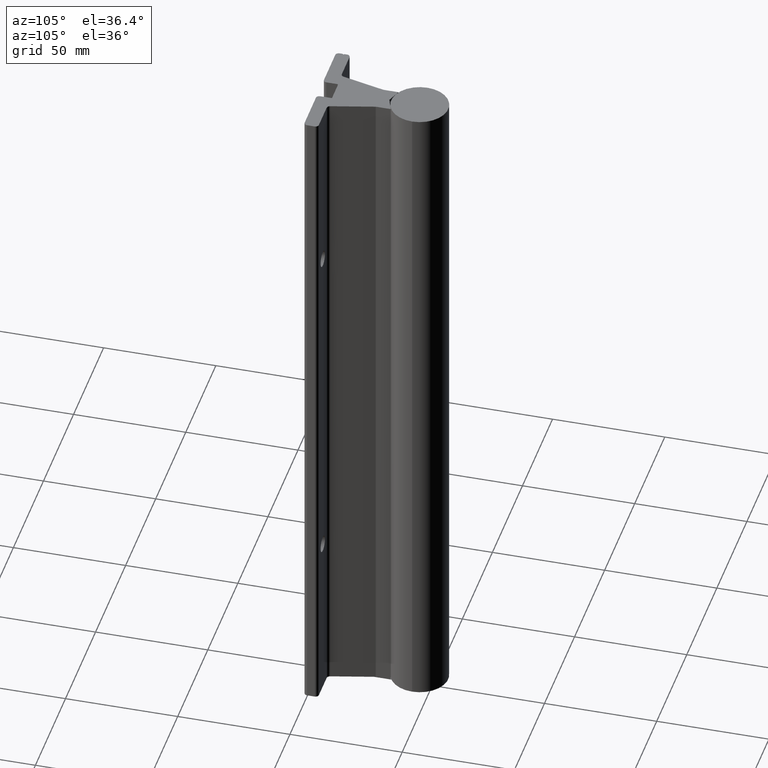
[diagram: clean part render]
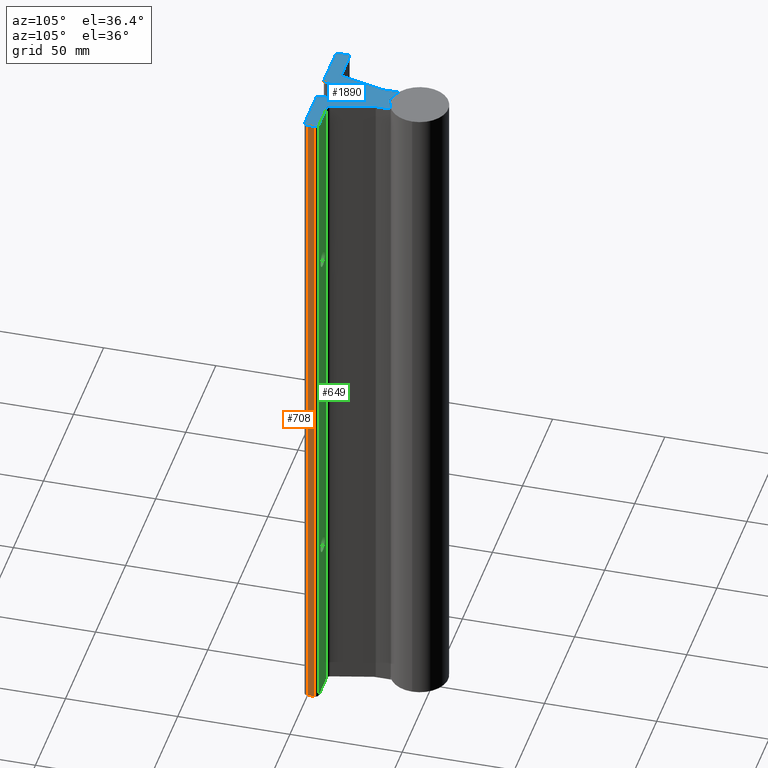
[diagram: same view with three faces highlighted in distinct colors, each labeled with its STEP entity id]
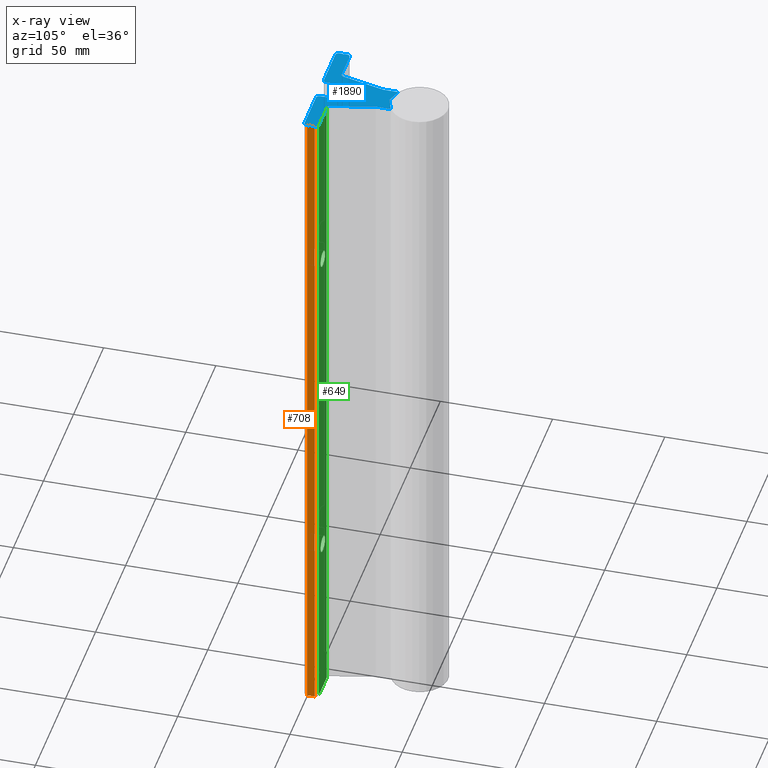
[diagram: x-ray of the same camera — body ghosted, the three highlighted faces saturated]
A machine part, auxiliary view with three faces highlighted in distinct colors.
The next image is the same camera in x-ray (body ghosted, the three faces saturated) — at least one of them is partly hidden behind the body in this view.
Their STEP definitions:

[orange] entity #708 — the highlighted planar face has unit normal (1, 0, 0).
#95 = VECTOR ( 'NONE', #2789, 39.37007874015748143 ) ;
#229 = VERTEX_POINT ( 'NONE', #3774 ) ;
#282 = DIRECTION ( 'NONE',  ( -4.202843067175812201E-15, 1.000000000000000000, 0.000000000000000000 ) ) ;
#370 = EDGE_CURVE ( 'NONE', #1080, #3290, #3075, .T. ) ;
#708 = ADVANCED_FACE ( 'NONE', ( #3352 ), #3965, .T. ) ;
#804 = VERTEX_POINT ( 'NONE', #3289 ) ;
#1080 = VERTEX_POINT ( 'NONE', #1471 ) ;
#1181 = ORIENTED_EDGE ( 'NONE', *, *, #3157, .T. ) ;
#1219 = DIRECTION ( 'NONE',  ( 0.000000000000000000, 0.000000000000000000, 1.000000000000000000 ) ) ;
#1333 = EDGE_LOOP ( 'NONE', ( #1482, #1181, #2409, #1788 ) ) ;
#1439 = DIRECTION ( 'NONE',  ( 4.202843067175812201E-15, -1.000000000000000000, 0.000000000000000000 ) ) ;
#1471 = CARTESIAN_POINT ( 'NONE',  ( 1.062500000003299805, 0.06000000000000058759, -12.00000000000000178 ) ) ;
#1482 = ORIENTED_EDGE ( 'NONE', *, *, #1869, .F. ) ;
#1510 = CARTESIAN_POINT ( 'NONE',  ( 1.062500000003299139, 0.1899999999999998912, -14.49573696227415098 ) ) ;
#1543 = CARTESIAN_POINT ( 'NONE',  ( 1.062500000003299805, 0.06000000000000058759, 0.000000000000000000 ) ) ;
#1702 = VECTOR ( 'NONE', #1219, 39.37007874015748143 ) ;
#1773 = CARTESIAN_POINT ( 'NONE',  ( 1.062500000003299805, 0.06000000000000058759, -14.49573696227415098 ) ) ;
#1788 = ORIENTED_EDGE ( 'NONE', *, *, #370, .F. ) ;
#1828 = DIRECTION ( 'NONE',  ( 1.000000000000000000, 4.202843067175812201E-15, -0.000000000000000000 ) ) ;
#1869 = EDGE_CURVE ( 'NONE', #229, #1080, #2967, .T. ) ;
#2082 = DIRECTION ( 'NONE',  ( 0.000000000000000000, 0.000000000000000000, 1.000000000000000000 ) ) ;
#2337 = AXIS2_PLACEMENT_3D ( 'NONE', #3070, #1828, #282 ) ;
#2409 = ORIENTED_EDGE ( 'NONE', *, *, #2513, .F. ) ;
#2491 = LINE ( 'NONE', #1510, #3303 ) ;
#2513 = EDGE_CURVE ( 'NONE', #3290, #804, #2809, .T. ) ;
#2789 = DIRECTION ( 'NONE',  ( -4.202843067175812201E-15, 1.000000000000000000, 0.000000000000000000 ) ) ;
#2809 = LINE ( 'NONE', #1543, #95 ) ;
#2967 = LINE ( 'NONE', #2992, #3443 ) ;
#2992 = CARTESIAN_POINT ( 'NONE',  ( 1.062500000003299805, 0.06000000000000058759, -12.00000000000000178 ) ) ;
#3070 = CARTESIAN_POINT ( 'NONE',  ( 1.062500000003299805, 0.06000000000000058759, -14.49573696227415098 ) ) ;
#3075 = LINE ( 'NONE', #1773, #1702 ) ;
#3157 = EDGE_CURVE ( 'NONE', #229, #804, #2491, .T. ) ;
#3289 = CARTESIAN_POINT ( 'NONE',  ( 1.062500000003299139, 0.1899999999999998912, 0.000000000000000000 ) ) ;
#3290 = VERTEX_POINT ( 'NONE', #3747 ) ;
#3303 = VECTOR ( 'NONE', #2082, 39.37007874015748143 ) ;
#3352 = FACE_OUTER_BOUND ( 'NONE', #1333, .T. ) ;
#3443 = VECTOR ( 'NONE', #1439, 39.37007874015748143 ) ;
#3747 = CARTESIAN_POINT ( 'NONE',  ( 1.062500000003299805, 0.06000000000000058759, 0.000000000000000000 ) ) ;
#3774 = CARTESIAN_POINT ( 'NONE',  ( 1.062500000003299139, 0.1899999999999998912, -12.00000000000000178 ) ) ;
#3965 = PLANE ( 'NONE',  #2337 ) ;

[blue] entity #1890 — the highlighted planar face has unit normal (0, 0, 1).
#2 = ORIENTED_EDGE ( 'NONE', *, *, #3460, .T. ) ;
#12 = VERTEX_POINT ( 'NONE', #4000 ) ;
#35 = CARTESIAN_POINT ( 'NONE',  ( 0.2444787913971579463, 0.003618442752846084878, 0.000000000000000000 ) ) ;
#53 = CARTESIAN_POINT ( 'NONE',  ( -0.4974315324142474792, 0.3124999999999997224, 0.000000000000000000 ) ) ;
#75 = DIRECTION ( 'NONE',  ( -1.000000000000000000, 5.408866656525876571E-16, 0.000000000000000000 ) ) ;
#80 = VECTOR ( 'NONE', #75, 39.37007874015748143 ) ;
#86 = VECTOR ( 'NONE', #3000, 39.37007874015748143 ) ;
#95 = VECTOR ( 'NONE', #2789, 39.37007874015748143 ) ;
#98 = CARTESIAN_POINT ( 'NONE',  ( 0.2649999999966984876, 0.06000000000000031697, 0.000000000000000000 ) ) ;
#118 = LINE ( 'NONE', #2923, #1941 ) ;
#136 = EDGE_CURVE ( 'NONE', #1016, #784, #3430, .T. ) ;
#137 = DIRECTION ( 'NONE',  ( 0.9396926207859099822, 0.3420201433256641055, 0.000000000000000000 ) ) ;
#140 = CARTESIAN_POINT ( 'NONE',  ( -1.023021208602842957, 0.003618442752846349423, 0.000000000000000000 ) ) ;
#141 = VECTOR ( 'NONE', #1001, 39.37007874015748854 ) ;
#197 = CARTESIAN_POINT ( 'NONE',  ( -0.2544203811607963495, -1.365923996832131609E-16, 0.000000000000000000 ) ) ;
#199 = ORIENTED_EDGE ( 'NONE', *, *, #1509, .T. ) ;
#211 = EDGE_CURVE ( 'NONE', #3921, #3184, #2055, .T. ) ;
#240 = VERTEX_POINT ( 'NONE', #926 ) ;
#264 = DIRECTION ( 'NONE',  ( 1.000000000000000000, 0.000000000000000000, 0.000000000000000000 ) ) ;
#270 = DIRECTION ( 'NONE',  ( -0.000000000000000000, -0.000000000000000000, -1.000000000000000000 ) ) ;
#307 = DIRECTION ( 'NONE',  ( 0.9396926207859244151, 0.3420201433256246926, 0.000000000000000000 ) ) ;
#389 = EDGE_CURVE ( 'NONE', #823, #548, #3071, .T. ) ;
#398 = ORIENTED_EDGE ( 'NONE', *, *, #3538, .T. ) ;
#406 = CIRCLE ( 'NONE', #3900, 0.01500000000000031863 ) ;
#408 = ORIENTED_EDGE ( 'NONE', *, *, #3737, .T. ) ;
#410 = CARTESIAN_POINT ( 'NONE',  ( -1.002500000003302638, 0.1899999999999999467, 0.000000000000000000 ) ) ;
#418 = ORIENTED_EDGE ( 'NONE', *, *, #1444, .T. ) ;
#420 = AXIS2_PLACEMENT_3D ( 'NONE', #2708, #3034, #264 ) ;
#423 = VERTEX_POINT ( 'NONE', #2537 ) ;
#443 = DIRECTION ( 'NONE',  ( 1.000000000000000000, 0.000000000000000000, 0.000000000000000000 ) ) ;
#466 = CARTESIAN_POINT ( 'NONE',  ( 0.2499999999966968922, 1.305666897899299350, 0.000000000000000000 ) ) ;
#468 = LINE ( 'NONE', #825, #3958 ) ;
#540 = EDGE_CURVE ( 'NONE', #1943, #2240, #118, .T. ) ;
#548 = VERTEX_POINT ( 'NONE', #3574 ) ;
#552 = CARTESIAN_POINT ( 'NONE',  ( -0.2180000000033027185, 1.305666897938102977, 0.000000000000000000 ) ) ;
#565 = DIRECTION ( 'NONE',  ( 1.000000000000000000, 0.000000000000000000, -0.000000000000000000 ) ) ;
#569 = ORIENTED_EDGE ( 'NONE', *, *, #1369, .T. ) ;
#572 = CARTESIAN_POINT ( 'NONE',  ( 0.2444787913971579463, 0.003618442752846076204, 0.000000000000000000 ) ) ;
#586 = LINE ( 'NONE', #3707, #2792 ) ;
#591 = EDGE_CURVE ( 'NONE', #3513, #1282, #1703, .T. ) ;
#594 = AXIS2_PLACEMENT_3D ( 'NONE', #2641, #819, #2319 ) ;
#632 = LINE ( 'NONE', #1862, #3001 ) ;
#654 = AXIS2_PLACEMENT_3D ( 'NONE', #552, #1163, #930 ) ;
#664 = LINE ( 'NONE', #3097, #2157 ) ;
#668 = EDGE_CURVE ( 'NONE', #2376, #1943, #1767, .T. ) ;
#682 = CARTESIAN_POINT ( 'NONE',  ( 0.2498416863023912027, 1.308846050806876882, 0.000000000000000000 ) ) ;
#702 = LINE ( 'NONE', #1324, #865 ) ;
#740 = CARTESIAN_POINT ( 'NONE',  ( -1.052500000003302905, 0.1232735026918957977, 0.000000000000000000 ) ) ;
#784 = VERTEX_POINT ( 'NONE', #3372 ) ;
#804 = VERTEX_POINT ( 'NONE', #3289 ) ;
#808 = CARTESIAN_POINT ( 'NONE',  ( 0.2049999999966982400, 0.2500000000000001110, 0.000000000000000000 ) ) ;
#819 = DIRECTION ( 'NONE',  ( -0.000000000000000000, -0.000000000000000000, -1.000000000000000000 ) ) ;
#823 = VERTEX_POINT ( 'NONE', #922 ) ;
#825 = CARTESIAN_POINT ( 'NONE',  ( 1.002500000003299307, 0.2499999999999999167, 0.000000000000000000 ) ) ;
#849 = AXIS2_PLACEMENT_3D ( 'NONE', #2158, #2685, #2072 ) ;
#863 = CARTESIAN_POINT ( 'NONE',  ( -2.500000000000000000, 0.000000000000000000, 0.000000000000000000 ) ) ;
#865 = VECTOR ( 'NONE', #1931, 39.37007874015748143 ) ;
#867 = VERTEX_POINT ( 'NONE', #2087 ) ;
#874 = EDGE_CURVE ( 'NONE', #2297, #3321, #1859, .T. ) ;
#888 = DIRECTION ( 'NONE',  ( -0.2419218955872280141, -0.9702957262790979920, 0.000000000000000000 ) ) ;
#889 = DIRECTION ( 'NONE',  ( 0.000000000000000000, 0.000000000000000000, 1.000000000000000000 ) ) ;
#922 = CARTESIAN_POINT ( 'NONE',  ( -0.2050000000033025405, 0.2500000000000001110, -0.000000000000000000 ) ) ;
#926 = CARTESIAN_POINT ( 'NONE',  ( -1.062500000003302469, 0.1175000000000001876, 0.000000000000000000 ) ) ;
#930 = DIRECTION ( 'NONE',  ( 1.000000000000000000, 0.000000000000000000, 0.000000000000000000 ) ) ;
#935 = EDGE_CURVE ( 'NONE', #3558, #1139, #1783, .T. ) ;
#947 = CARTESIAN_POINT ( 'NONE',  ( -1.052500000003302905, 0.1232735026918957977, 0.000000000000000000 ) ) ;
#971 = VECTOR ( 'NONE', #2094, 39.37007874015748143 ) ;
#995 = ORIENTED_EDGE ( 'NONE', *, *, #2273, .T. ) ;
#996 = LINE ( 'NONE', #1868, #80 ) ;
#998 = ORIENTED_EDGE ( 'NONE', *, *, #136, .T. ) ;
#999 = EDGE_CURVE ( 'NONE', #1183, #3513, #1125, .T. ) ;
#1001 = DIRECTION ( 'NONE',  ( -0.8660254037844486996, -0.4999999999999824030, 0.000000000000000000 ) ) ;
#1004 = CARTESIAN_POINT ( 'NONE',  ( -0.2500000000033027470, 1.305666897938102977, 0.000000000000000000 ) ) ;
#1016 = VERTEX_POINT ( 'NONE', #1760 ) ;
#1021 = VERTEX_POINT ( 'NONE', #3656 ) ;
#1043 = ORIENTED_EDGE ( 'NONE', *, *, #3967, .T. ) ;
#1078 = CIRCLE ( 'NONE', #2509, 0.05999999999999976880 ) ;
#1099 = VERTEX_POINT ( 'NONE', #1450 ) ;
#1107 = CARTESIAN_POINT ( 'NONE',  ( -2.500000000000000000, 0.000000000000000000, 0.000000000000000000 ) ) ;
#1125 = LINE ( 'NONE', #1107, #1463 ) ;
#1139 = VERTEX_POINT ( 'NONE', #1734 ) ;
#1163 = DIRECTION ( 'NONE',  ( 0.000000000000000000, 0.000000000000000000, 1.000000000000000000 ) ) ;
#1183 = VERTEX_POINT ( 'NONE', #2125 ) ;
#1236 = EDGE_CURVE ( 'NONE', #548, #1763, #1269, .T. ) ;
#1262 = ORIENTED_EDGE ( 'NONE', *, *, #3567, .T. ) ;
#1269 = LINE ( 'NONE', #2777, #1331 ) ;
#1282 = VERTEX_POINT ( 'NONE', #2291 ) ;
#1293 = ORIENTED_EDGE ( 'NONE', *, *, #3114, .T. ) ;
#1306 = CARTESIAN_POINT ( 'NONE',  ( -0.2650000000033024827, 0.06000000000000038636, 0.000000000000000000 ) ) ;
#1314 = DIRECTION ( 'NONE',  ( 0.000000000000000000, 0.000000000000000000, 1.000000000000000000 ) ) ;
#1324 = CARTESIAN_POINT ( 'NONE',  ( 0.2499999999966968089, 1.054219864300000475, 0.000000000000000000 ) ) ;
#1331 = VECTOR ( 'NONE', #3752, 39.37007874015748143 ) ;
#1335 = VECTOR ( 'NONE', #2654, 39.37007874015748854 ) ;
#1351 = AXIS2_PLACEMENT_3D ( 'NONE', #3083, #3671, #3061 ) ;
#1353 = CIRCLE ( 'NONE', #3112, 0.06250000000000069389 ) ;
#1365 = DIRECTION ( 'NONE',  ( 0.000000000000000000, -1.000000000000000000, 0.000000000000000000 ) ) ;
#1369 = EDGE_CURVE ( 'NONE', #1282, #423, #1078, .T. ) ;
#1381 = CARTESIAN_POINT ( 'NONE',  ( 0.000000000000000000, 0.000000000000000000, 0.000000000000000000 ) ) ;
#1398 = VERTEX_POINT ( 'NONE', #2263 ) ;
#1403 = LINE ( 'NONE', #3955, #86 ) ;
#1436 = ORIENTED_EDGE ( 'NONE', *, *, #668, .T. ) ;
#1444 = EDGE_CURVE ( 'NONE', #3679, #1922, #1447, .T. ) ;
#1447 = LINE ( 'NONE', #808, #2123 ) ;
#1450 = CARTESIAN_POINT ( 'NONE',  ( 0.2499999999966968089, 1.054219864300000475, 0.000000000000000000 ) ) ;
#1451 = CARTESIAN_POINT ( 'NONE',  ( 0.4367880495966964816, 0.2973798815999993961, 0.000000000000000000 ) ) ;
#1463 = VECTOR ( 'NONE', #2022, 39.37007874015748143 ) ;
#1485 = CIRCLE ( 'NONE', #1351, 0.05999999999999949818 ) ;
#1509 = EDGE_CURVE ( 'NONE', #3321, #3921, #1403, .T. ) ;
#1516 = EDGE_LOOP ( 'NONE', ( #2762, #2969, #2394, #569, #2748, #2553, #3059, #2423, #418, #3550, #2258, #1262, #1043, #2899, #1918, #1293, #1813, #398, #3229, #408, #3807, #3106, #199, #2614, #2819, #995, #2, #2056, #998, #1986, #2345, #1436, #3850, #3452, #2214, #1942, #1541 ) ) ;
#1527 = LINE ( 'NONE', #572, #3496 ) ;
#1541 = ORIENTED_EDGE ( 'NONE', *, *, #3136, .T. ) ;
#1543 = CARTESIAN_POINT ( 'NONE',  ( 1.062500000003299805, 0.06000000000000058759, 0.000000000000000000 ) ) ;
#1572 = VECTOR ( 'NONE', #3599, 39.37007874015748854 ) ;
#1612 = CIRCLE ( 'NONE', #849, 0.06249999999999933387 ) ;
#1621 = EDGE_CURVE ( 'NONE', #1763, #3679, #406, .T. ) ;
#1651 = DIRECTION ( 'NONE',  ( 0.000000000000000000, 0.000000000000000000, 1.000000000000000000 ) ) ;
#1703 = LINE ( 'NONE', #197, #2851 ) ;
#1725 = CARTESIAN_POINT ( 'NONE',  ( -0.2518565171033020356, 1.039099745799999752, 0.000000000000000000 ) ) ;
#1734 = CARTESIAN_POINT ( 'NONE',  ( 0.2518565171966969940, 1.039099745799999752, 0.000000000000000000 ) ) ;
#1760 = CARTESIAN_POINT ( 'NONE',  ( -0.4367880495033028554, 0.2973798815999998402, 0.000000000000000000 ) ) ;
#1763 = VERTEX_POINT ( 'NONE', #2866 ) ;
#1767 = LINE ( 'NONE', #3902, #2403 ) ;
#1783 = LINE ( 'NONE', #1451, #1335 ) ;
#1802 = EDGE_CURVE ( 'NONE', #2240, #3333, #2012, .T. ) ;
#1813 = ORIENTED_EDGE ( 'NONE', *, *, #2919, .T. ) ;
#1835 = VERTEX_POINT ( 'NONE', #1725 ) ;
#1840 = DIRECTION ( 'NONE',  ( 0.9396926207858971036, -0.3420201433256993551, 0.000000000000000000 ) ) ;
#1859 = CIRCLE ( 'NONE', #2446, 0.03200000000000019496 ) ;
#1862 = CARTESIAN_POINT ( 'NONE',  ( -0.2050000000033029290, 0.06000000000000010880, 0.000000000000000000 ) ) ;
#1868 = CARTESIAN_POINT ( 'NONE',  ( -0.4974315324033023455, 0.2499999999999998057, 0.000000000000000000 ) ) ;
#1890 = ADVANCED_FACE ( 'NONE', ( #2404 ), #3644, .T. ) ;
#1897 = DIRECTION ( 'NONE',  ( -0.000000000000000000, -0.000000000000000000, -1.000000000000000000 ) ) ;
#1918 = ORIENTED_EDGE ( 'NONE', *, *, #2513, .T. ) ;
#1922 = VERTEX_POINT ( 'NONE', #2414 ) ;
#1931 = DIRECTION ( 'NONE',  ( 1.358063343679013871E-16, 1.000000000000000000, 0.000000000000000000 ) ) ;
#1938 = VECTOR ( 'NONE', #2620, 39.37007874015748854 ) ;
#1941 = VECTOR ( 'NONE', #2638, 39.37007874015748854 ) ;
#1942 = ORIENTED_EDGE ( 'NONE', *, *, #3287, .T. ) ;
#1943 = VERTEX_POINT ( 'NONE', #2696 ) ;
#1960 = CARTESIAN_POINT ( 'NONE',  ( 0.2544203811541909666, -3.414809992080329023E-17, 0.000000000000000000 ) ) ;
#1962 = EDGE_CURVE ( 'NONE', #3319, #3290, #3833, .T. ) ;
#1986 = ORIENTED_EDGE ( 'NONE', *, *, #3649, .T. ) ;
#1991 = CARTESIAN_POINT ( 'NONE',  ( 4.097771990496394828E-16, 1.217911113771135811, 0.000000000000000000 ) ) ;
#2012 = LINE ( 'NONE', #3273, #2989 ) ;
#2022 = DIRECTION ( 'NONE',  ( 1.000000000000000000, 0.000000000000000000, 0.000000000000000000 ) ) ;
#2032 = LINE ( 'NONE', #140, #1938 ) ;
#2055 = LINE ( 'NONE', #1991, #1572 ) ;
#2056 = ORIENTED_EDGE ( 'NONE', *, *, #2494, .T. ) ;
#2061 = CARTESIAN_POINT ( 'NONE',  ( 1.002500000003299307, 0.06000000000000058759, 0.000000000000000000 ) ) ;
#2072 = DIRECTION ( 'NONE',  ( 1.000000000000000000, 0.000000000000000000, 0.000000000000000000 ) ) ;
#2087 = CARTESIAN_POINT ( 'NONE',  ( 1.013079618845805774, 0.000000000000000000, 0.000000000000000000 ) ) ;
#2094 = DIRECTION ( 'NONE',  ( 1.000000000000000000, 0.000000000000000000, 0.000000000000000000 ) ) ;
#2118 = VERTEX_POINT ( 'NONE', #35 ) ;
#2123 = VECTOR ( 'NONE', #2649, 39.37007874015748143 ) ;
#2125 = CARTESIAN_POINT ( 'NONE',  ( -1.013079618845818874, 1.570812596356951301E-15, 0.000000000000000000 ) ) ;
#2157 = VECTOR ( 'NONE', #888, 39.37007874015748854 ) ;
#2158 = CARTESIAN_POINT ( 'NONE',  ( 0.4974315325076398842, 0.3124999999999996669, 0.000000000000000000 ) ) ;
#2181 = EDGE_CURVE ( 'NONE', #423, #823, #632, .T. ) ;
#2214 = ORIENTED_EDGE ( 'NONE', *, *, #3221, .T. ) ;
#2240 = VERTEX_POINT ( 'NONE', #3526 ) ;
#2256 = DIRECTION ( 'NONE',  ( 4.751039988981327336E-15, -1.000000000000000000, 0.000000000000000000 ) ) ;
#2258 = ORIENTED_EDGE ( 'NONE', *, *, #3101, .T. ) ;
#2263 = CARTESIAN_POINT ( 'NONE',  ( -0.2500000000033027470, 1.305666897938102977, 0.000000000000000000 ) ) ;
#2267 = CIRCLE ( 'NONE', #594, 0.06250000000000073552 ) ;
#2273 = EDGE_CURVE ( 'NONE', #1398, #3509, #3789, .T. ) ;
#2291 = CARTESIAN_POINT ( 'NONE',  ( -0.2444787914037632459, 0.003618442752845649462, 0.000000000000000000 ) ) ;
#2297 = VERTEX_POINT ( 'NONE', #466 ) ;
#2308 = DIRECTION ( 'NONE',  ( -1.000000000000000000, 6.761083321907651051E-16, 0.000000000000000000 ) ) ;
#2316 = EDGE_CURVE ( 'NONE', #1099, #2297, #702, .T. ) ;
#2319 = DIRECTION ( 'NONE',  ( 1.000000000000000000, 0.000000000000000000, 0.000000000000000000 ) ) ;
#2345 = ORIENTED_EDGE ( 'NONE', *, *, #3755, .T. ) ;
#2369 = CARTESIAN_POINT ( 'NONE',  ( -1.062500000003302913, 0.1899999999999999467, 0.000000000000000000 ) ) ;
#2376 = VERTEX_POINT ( 'NONE', #2369 ) ;
#2394 = ORIENTED_EDGE ( 'NONE', *, *, #591, .T. ) ;
#2402 = CARTESIAN_POINT ( 'NONE',  ( 0.4367880495966964260, 0.2973798815999993961, 0.000000000000000000 ) ) ;
#2403 = VECTOR ( 'NONE', #3944, 39.37007874015748143 ) ;
#2404 = FACE_OUTER_BOUND ( 'NONE', #1516, .T. ) ;
#2412 = CARTESIAN_POINT ( 'NONE',  ( 1.002500000003299307, 0.1899999999999999467, 0.000000000000000000 ) ) ;
#2414 = CARTESIAN_POINT ( 'NONE',  ( 0.2049999999966986286, 0.06000000000000027534, 0.000000000000000000 ) ) ;
#2416 = DIRECTION ( 'NONE',  ( 1.000000000000000000, 0.000000000000000000, 0.000000000000000000 ) ) ;
#2423 = ORIENTED_EDGE ( 'NONE', *, *, #1621, .T. ) ;
#2446 = AXIS2_PLACEMENT_3D ( 'NONE', #2959, #3939, #2416 ) ;
#2494 = EDGE_CURVE ( 'NONE', #1835, #1016, #664, .T. ) ;
#2509 = AXIS2_PLACEMENT_3D ( 'NONE', #1306, #3177, #2567 ) ;
#2511 = DIRECTION ( 'NONE',  ( -0.000000000000000000, -0.000000000000000000, -1.000000000000000000 ) ) ;
#2513 = EDGE_CURVE ( 'NONE', #3290, #804, #2809, .T. ) ;
#2537 = CARTESIAN_POINT ( 'NONE',  ( -0.2050000000033027348, 0.06000000000000010880, 0.000000000000000000 ) ) ;
#2542 = LINE ( 'NONE', #947, #141 ) ;
#2553 = ORIENTED_EDGE ( 'NONE', *, *, #389, .T. ) ;
#2555 = DIRECTION ( 'NONE',  ( 1.000000000000000000, 0.000000000000000000, 0.000000000000000000 ) ) ;
#2567 = DIRECTION ( 'NONE',  ( 1.000000000000000000, 0.000000000000000000, 0.000000000000000000 ) ) ;
#2614 = ORIENTED_EDGE ( 'NONE', *, *, #211, .T. ) ;
#2620 = DIRECTION ( 'NONE',  ( 0.9396926207858926627, -0.3420201433257117896, 0.000000000000000000 ) ) ;
#2621 = DIRECTION ( 'NONE',  ( 0.000000000000000000, 0.000000000000000000, 1.000000000000000000 ) ) ;
#2638 = DIRECTION ( 'NONE',  ( 0.8660254037844538066, -0.4999999999999735767, 0.000000000000000000 ) ) ;
#2641 = CARTESIAN_POINT ( 'NONE',  ( -0.3125000000033035241, 1.054219864243891802, 0.000000000000000000 ) ) ;
#2649 = DIRECTION ( 'NONE',  ( 1.976995258572823265E-15, -1.000000000000000000, 0.000000000000000000 ) ) ;
#2653 = CIRCLE ( 'NONE', #654, 0.03200000000000002842 ) ;
#2654 = DIRECTION ( 'NONE',  ( -0.2419218955872262378, 0.9702957262790985471, 0.000000000000000000 ) ) ;
#2685 = DIRECTION ( 'NONE',  ( -0.000000000000000000, -0.000000000000000000, -1.000000000000000000 ) ) ;
#2686 = DIRECTION ( 'NONE',  ( 0.000000000000000000, -1.000000000000000000, 0.000000000000000000 ) ) ;
#2696 = CARTESIAN_POINT ( 'NONE',  ( -1.062500000003302247, 0.1474999999999999922, 0.000000000000000000 ) ) ;
#2708 = CARTESIAN_POINT ( 'NONE',  ( -0.1900000000033017222, 0.2500000000000000555, 0.000000000000000000 ) ) ;
#2733 = CARTESIAN_POINT ( 'NONE',  ( 4.097771990496394828E-16, 1.217911113771135811, 0.000000000000000000 ) ) ;
#2748 = ORIENTED_EDGE ( 'NONE', *, *, #2181, .T. ) ;
#2762 = ORIENTED_EDGE ( 'NONE', *, *, #3364, .T. ) ;
#2777 = CARTESIAN_POINT ( 'NONE',  ( -0.1900000000033017222, 0.2650000000000007350, 0.000000000000000000 ) ) ;
#2783 = CARTESIAN_POINT ( 'NONE',  ( 0.2049999999966982123, 0.2500000000000001110, 0.000000000000000000 ) ) ;
#2789 = DIRECTION ( 'NONE',  ( -4.202843067175812201E-15, 1.000000000000000000, 0.000000000000000000 ) ) ;
#2792 = VECTOR ( 'NONE', #307, 39.37007874015748854 ) ;
#2797 = AXIS2_PLACEMENT_3D ( 'NONE', #1381, #2621, #565 ) ;
#2809 = LINE ( 'NONE', #1543, #95 ) ;
#2819 = ORIENTED_EDGE ( 'NONE', *, *, #3073, .T. ) ;
#2830 = DIRECTION ( 'NONE',  ( 1.000000000000000000, 0.000000000000000000, 0.000000000000000000 ) ) ;
#2840 = VERTEX_POINT ( 'NONE', #1960 ) ;
#2844 = AXIS2_PLACEMENT_3D ( 'NONE', #2412, #889, #3651 ) ;
#2848 = AXIS2_PLACEMENT_3D ( 'NONE', #410, #1651, #3809 ) ;
#2851 = VECTOR ( 'NONE', #137, 39.37007874015748854 ) ;
#2866 = CARTESIAN_POINT ( 'NONE',  ( 0.1899999999966978936, 0.2650000000000004019, 0.000000000000000000 ) ) ;
#2899 = ORIENTED_EDGE ( 'NONE', *, *, #1962, .T. ) ;
#2919 = EDGE_CURVE ( 'NONE', #3531, #12, #468, .T. ) ;
#2923 = CARTESIAN_POINT ( 'NONE',  ( -1.062500000003302247, 0.1474999999999999922, 0.000000000000000000 ) ) ;
#2959 = CARTESIAN_POINT ( 'NONE',  ( 0.2179999999966966973, 1.305666897899298906, 0.000000000000000000 ) ) ;
#2969 = ORIENTED_EDGE ( 'NONE', *, *, #999, .T. ) ;
#2989 = VECTOR ( 'NONE', #2686, 39.37007874015748143 ) ;
#3000 = DIRECTION ( 'NONE',  ( -0.9396926208550562265, -0.3420201431356865718, 0.000000000000000000 ) ) ;
#3001 = VECTOR ( 'NONE', #3427, 39.37007874015748143 ) ;
#3034 = DIRECTION ( 'NONE',  ( -0.000000000000000000, -0.000000000000000000, -1.000000000000000000 ) ) ;
#3059 = ORIENTED_EDGE ( 'NONE', *, *, #1236, .T. ) ;
#3061 = DIRECTION ( 'NONE',  ( 1.000000000000000000, 0.000000000000000000, 0.000000000000000000 ) ) ;
#3066 = VECTOR ( 'NONE', #1365, 39.37007874015748143 ) ;
#3071 = CIRCLE ( 'NONE', #420, 0.01500000000000072803 ) ;
#3073 = EDGE_CURVE ( 'NONE', #3184, #1398, #2653, .T. ) ;
#3076 = AXIS2_PLACEMENT_3D ( 'NONE', #53, #2511, #443 ) ;
#3079 = VERTEX_POINT ( 'NONE', #3404 ) ;
#3083 = CARTESIAN_POINT ( 'NONE',  ( -1.002500000003302638, 0.06000000000000031697, 0.000000000000000000 ) ) ;
#3090 = VERTEX_POINT ( 'NONE', #3344 ) ;
#3093 = CARTESIAN_POINT ( 'NONE',  ( -0.2500000000033027470, 1.054219864300000475, 0.000000000000000000 ) ) ;
#3097 = CARTESIAN_POINT ( 'NONE',  ( -0.2518565171033020911, 1.039099745799999752, 0.000000000000000000 ) ) ;
#3099 = DIRECTION ( 'NONE',  ( 1.000000000000000000, 0.000000000000000000, 0.000000000000000000 ) ) ;
#3101 = EDGE_CURVE ( 'NONE', #2118, #2840, #1527, .T. ) ;
#3106 = ORIENTED_EDGE ( 'NONE', *, *, #874, .T. ) ;
#3110 = CIRCLE ( 'NONE', #2844, 0.05999999999999990757 ) ;
#3112 = AXIS2_PLACEMENT_3D ( 'NONE', #3772, #1897, #2830 ) ;
#3114 = EDGE_CURVE ( 'NONE', #804, #3531, #3110, .T. ) ;
#3117 = CARTESIAN_POINT ( 'NONE',  ( 0.1899999999966978936, 0.2500000000000000555, 0.000000000000000000 ) ) ;
#3133 = LINE ( 'NONE', #3765, #3560 ) ;
#3136 = EDGE_CURVE ( 'NONE', #3079, #1021, #1485, .T. ) ;
#3177 = DIRECTION ( 'NONE',  ( 0.000000000000000000, 0.000000000000000000, 1.000000000000000000 ) ) ;
#3184 = VERTEX_POINT ( 'NONE', #3440 ) ;
#3221 = EDGE_CURVE ( 'NONE', #3333, #240, #2542, .T. ) ;
#3229 = ORIENTED_EDGE ( 'NONE', *, *, #935, .T. ) ;
#3273 = CARTESIAN_POINT ( 'NONE',  ( -1.052500000003302905, 0.1417264973081045210, 0.000000000000000000 ) ) ;
#3287 = EDGE_CURVE ( 'NONE', #240, #3079, #3133, .T. ) ;
#3289 = CARTESIAN_POINT ( 'NONE',  ( 1.062500000003299139, 0.1899999999999998912, 0.000000000000000000 ) ) ;
#3290 = VERTEX_POINT ( 'NONE', #3747 ) ;
#3306 = AXIS2_PLACEMENT_3D ( 'NONE', #98, #1314, #2555 ) ;
#3319 = VERTEX_POINT ( 'NONE', #3463 ) ;
#3321 = VERTEX_POINT ( 'NONE', #682 ) ;
#3327 = DIRECTION ( 'NONE',  ( 0.000000000000000000, 0.000000000000000000, 1.000000000000000000 ) ) ;
#3333 = VERTEX_POINT ( 'NONE', #740 ) ;
#3337 = CARTESIAN_POINT ( 'NONE',  ( -0.2544203811607962940, 0.000000000000000000, 0.000000000000000000 ) ) ;
#3344 = CARTESIAN_POINT ( 'NONE',  ( -1.002500000003302860, 0.2500000000000000555, 0.000000000000000000 ) ) ;
#3364 = EDGE_CURVE ( 'NONE', #1021, #1183, #2032, .T. ) ;
#3372 = CARTESIAN_POINT ( 'NONE',  ( -0.4974315324033023455, 0.2499999999999995837, 0.000000000000000000 ) ) ;
#3378 = CARTESIAN_POINT ( 'NONE',  ( 1.002500000003299307, 0.2499999999999999167, 0.000000000000000000 ) ) ;
#3404 = CARTESIAN_POINT ( 'NONE',  ( -1.062500000003302025, 0.06000000000000018513, 0.000000000000000000 ) ) ;
#3427 = DIRECTION ( 'NONE',  ( 2.156722100261260166E-15, 1.000000000000000000, 0.000000000000000000 ) ) ;
#3430 = CIRCLE ( 'NONE', #3076, 0.06250000000000015266 ) ;
#3440 = CARTESIAN_POINT ( 'NONE',  ( -0.2498416863082725259, 1.308846050852938259, 0.000000000000000000 ) ) ;
#3452 = ORIENTED_EDGE ( 'NONE', *, *, #1802, .T. ) ;
#3460 = EDGE_CURVE ( 'NONE', #3509, #1835, #2267, .T. ) ;
#3463 = CARTESIAN_POINT ( 'NONE',  ( 1.023021208602838961, 0.003618442752845333309, 0.000000000000000000 ) ) ;
#3496 = VECTOR ( 'NONE', #1840, 39.37007874015748854 ) ;
#3509 = VERTEX_POINT ( 'NONE', #3093 ) ;
#3513 = VERTEX_POINT ( 'NONE', #3337 ) ;
#3526 = CARTESIAN_POINT ( 'NONE',  ( -1.052500000003302905, 0.1417264973081044654, 0.000000000000000000 ) ) ;
#3531 = VERTEX_POINT ( 'NONE', #3378 ) ;
#3538 = EDGE_CURVE ( 'NONE', #12, #3558, #1612, .T. ) ;
#3550 = ORIENTED_EDGE ( 'NONE', *, *, #3696, .T. ) ;
#3558 = VERTEX_POINT ( 'NONE', #2402 ) ;
#3560 = VECTOR ( 'NONE', #2256, 39.37007874015748143 ) ;
#3567 = EDGE_CURVE ( 'NONE', #2840, #867, #3643, .T. ) ;
#3574 = CARTESIAN_POINT ( 'NONE',  ( -0.1900000000033017222, 0.2650000000000007905, 0.000000000000000000 ) ) ;
#3599 = DIRECTION ( 'NONE',  ( -0.9396926208019645843, 0.3420201432815545561, 0.000000000000000000 ) ) ;
#3634 = CIRCLE ( 'NONE', #3306, 0.05999999999999987288 ) ;
#3643 = LINE ( 'NONE', #863, #971 ) ;
#3644 = PLANE ( 'NONE',  #2797 ) ;
#3649 = EDGE_CURVE ( 'NONE', #784, #3090, #996, .T. ) ;
#3651 = DIRECTION ( 'NONE',  ( 1.000000000000000000, 0.000000000000000000, 0.000000000000000000 ) ) ;
#3656 = CARTESIAN_POINT ( 'NONE',  ( -1.023021208602842957, 0.003618442752846434858, 0.000000000000000000 ) ) ;
#3671 = DIRECTION ( 'NONE',  ( 0.000000000000000000, 0.000000000000000000, 1.000000000000000000 ) ) ;
#3679 = VERTEX_POINT ( 'NONE', #2783 ) ;
#3696 = EDGE_CURVE ( 'NONE', #1922, #2118, #3634, .T. ) ;
#3707 = CARTESIAN_POINT ( 'NONE',  ( 1.013079618845805774, 0.000000000000000000, 0.000000000000000000 ) ) ;
#3737 = EDGE_CURVE ( 'NONE', #1139, #1099, #1353, .T. ) ;
#3747 = CARTESIAN_POINT ( 'NONE',  ( 1.062500000003299805, 0.06000000000000058759, 0.000000000000000000 ) ) ;
#3752 = DIRECTION ( 'NONE',  ( 1.000000000000000000, -8.986342084421927875E-16, 0.000000000000000000 ) ) ;
#3755 = EDGE_CURVE ( 'NONE', #3090, #2376, #3762, .T. ) ;
#3762 = CIRCLE ( 'NONE', #2848, 0.06000000000000017819 ) ;
#3765 = CARTESIAN_POINT ( 'NONE',  ( -1.062500000003302247, 0.1175000000000001876, 0.000000000000000000 ) ) ;
#3771 = AXIS2_PLACEMENT_3D ( 'NONE', #2061, #3327, #3980 ) ;
#3772 = CARTESIAN_POINT ( 'NONE',  ( 0.3124999999966975306, 1.054219864644973415, 0.000000000000000000 ) ) ;
#3789 = LINE ( 'NONE', #1004, #3066 ) ;
#3807 = ORIENTED_EDGE ( 'NONE', *, *, #2316, .T. ) ;
#3809 = DIRECTION ( 'NONE',  ( 1.000000000000000000, 0.000000000000000000, 0.000000000000000000 ) ) ;
#3833 = CIRCLE ( 'NONE', #3771, 0.06000000000000045575 ) ;
#3850 = ORIENTED_EDGE ( 'NONE', *, *, #540, .T. ) ;
#3900 = AXIS2_PLACEMENT_3D ( 'NONE', #3117, #270, #3099 ) ;
#3902 = CARTESIAN_POINT ( 'NONE',  ( -1.062500000003302913, 0.1899999999999999467, 0.000000000000000000 ) ) ;
#3921 = VERTEX_POINT ( 'NONE', #2733 ) ;
#3939 = DIRECTION ( 'NONE',  ( 0.000000000000000000, 0.000000000000000000, 1.000000000000000000 ) ) ;
#3944 = DIRECTION ( 'NONE',  ( 1.285575526430243055E-14, -1.000000000000000000, 0.000000000000000000 ) ) ;
#3955 = CARTESIAN_POINT ( 'NONE',  ( 0.2498416863023912027, 1.308846050806876882, 0.000000000000000000 ) ) ;
#3958 = VECTOR ( 'NONE', #2308, 39.37007874015748143 ) ;
#3967 = EDGE_CURVE ( 'NONE', #867, #3319, #586, .T. ) ;
#3980 = DIRECTION ( 'NONE',  ( 1.000000000000000000, 0.000000000000000000, 0.000000000000000000 ) ) ;
#4000 = CARTESIAN_POINT ( 'NONE',  ( 0.4974315324966993579, 0.2500000000000003331, 0.000000000000000000 ) ) ;

[green] entity #649 — the highlighted planar face has unit normal (0, 1, 0).
#12 = VERTEX_POINT ( 'NONE', #4000 ) ;
#45 = DIRECTION ( 'NONE',  ( -6.761083321907651051E-16, -1.000000000000000000, 0.000000000000000000 ) ) ;
#89 = EDGE_CURVE ( 'NONE', #3572, #2661, #3227, .T. ) ;
#116 = VERTEX_POINT ( 'NONE', #2778 ) ;
#218 = ORIENTED_EDGE ( 'NONE', *, *, #2564, .F. ) ;
#298 = CARTESIAN_POINT ( 'NONE',  ( 0.7500000000000001110, 0.2500000000000000555, -3.000000000000000444 ) ) ;
#306 = EDGE_LOOP ( 'NONE', ( #356, #3420 ) ) ;
#326 = LINE ( 'NONE', #1246, #1892 ) ;
#345 = EDGE_CURVE ( 'NONE', #2661, #3572, #1113, .T. ) ;
#356 = ORIENTED_EDGE ( 'NONE', *, *, #2548, .T. ) ;
#437 = DIRECTION ( 'NONE',  ( 6.761083321907651051E-16, 1.000000000000000000, -0.000000000000000000 ) ) ;
#468 = LINE ( 'NONE', #825, #3958 ) ;
#479 = CIRCLE ( 'NONE', #1833, 0.1405000000000000415 ) ;
#554 = AXIS2_PLACEMENT_3D ( 'NONE', #903, #1135, #2134 ) ;
#581 = LINE ( 'NONE', #2378, #3763 ) ;
#649 = ADVANCED_FACE ( 'NONE', ( #2278, #1965, #2881 ), #3817, .T. ) ;
#656 = AXIS2_PLACEMENT_3D ( 'NONE', #3533, #437, #1660 ) ;
#701 = VERTEX_POINT ( 'NONE', #1152 ) ;
#791 = EDGE_CURVE ( 'NONE', #2174, #12, #581, .T. ) ;
#825 = CARTESIAN_POINT ( 'NONE',  ( 1.002500000003299307, 0.2499999999999999167, 0.000000000000000000 ) ) ;
#903 = CARTESIAN_POINT ( 'NONE',  ( 0.7500000000000001110, 0.2500000000000000555, -3.000000000000000444 ) ) ;
#938 = DIRECTION ( 'NONE',  ( -1.000000000000000000, 7.291409235758707710E-16, 0.000000000000000000 ) ) ;
#1113 = CIRCLE ( 'NONE', #554, 0.1405000000000000415 ) ;
#1135 = DIRECTION ( 'NONE',  ( -6.761083321907651051E-16, -1.000000000000000000, 0.000000000000000000 ) ) ;
#1152 = CARTESIAN_POINT ( 'NONE',  ( 0.7500000000000001110, 0.2500000000000000555, -9.140500000000001180 ) ) ;
#1246 = CARTESIAN_POINT ( 'NONE',  ( 1.002500000003299307, 0.2499999999999999167, -12.00000000000000178 ) ) ;
#1263 = CARTESIAN_POINT ( 'NONE',  ( 0.7500000000000001110, 0.2500000000000000555, -9.000000000000001776 ) ) ;
#1370 = CIRCLE ( 'NONE', #2091, 0.1405000000000000415 ) ;
#1514 = DIRECTION ( 'NONE',  ( -6.761083321907651051E-16, -1.000000000000000000, 0.000000000000000000 ) ) ;
#1580 = DIRECTION ( 'NONE',  ( -1.000000000000000000, 7.291409235758707710E-16, 0.000000000000000000 ) ) ;
#1660 = DIRECTION ( 'NONE',  ( -1.000000000000000000, 6.761083321907651051E-16, 0.000000000000000000 ) ) ;
#1690 = ORIENTED_EDGE ( 'NONE', *, *, #2172, .F. ) ;
#1786 = ORIENTED_EDGE ( 'NONE', *, *, #89, .T. ) ;
#1815 = DIRECTION ( 'NONE',  ( -1.000000000000000000, 7.291409235758707710E-16, 0.000000000000000000 ) ) ;
#1821 = CARTESIAN_POINT ( 'NONE',  ( 1.002500000003299307, 0.2499999999999999167, -14.49573696227415098 ) ) ;
#1833 = AXIS2_PLACEMENT_3D ( 'NONE', #3709, #2754, #1815 ) ;
#1892 = VECTOR ( 'NONE', #3729, 39.37007874015748143 ) ;
#1927 = CARTESIAN_POINT ( 'NONE',  ( 0.7500000000000001110, 0.2500000000000000555, -2.859499999999999709 ) ) ;
#1965 = FACE_BOUND ( 'NONE', #3593, .T. ) ;
#2091 = AXIS2_PLACEMENT_3D ( 'NONE', #1263, #45, #1580 ) ;
#2134 = DIRECTION ( 'NONE',  ( -1.000000000000000000, 7.291409235758707710E-16, 0.000000000000000000 ) ) ;
#2167 = VERTEX_POINT ( 'NONE', #3137 ) ;
#2172 = EDGE_CURVE ( 'NONE', #116, #3531, #3715, .T. ) ;
#2174 = VERTEX_POINT ( 'NONE', #2796 ) ;
#2193 = AXIS2_PLACEMENT_3D ( 'NONE', #298, #1514, #938 ) ;
#2278 = FACE_BOUND ( 'NONE', #306, .T. ) ;
#2288 = VECTOR ( 'NONE', #2758, 39.37007874015748143 ) ;
#2308 = DIRECTION ( 'NONE',  ( -1.000000000000000000, 6.761083321907651051E-16, 0.000000000000000000 ) ) ;
#2378 = CARTESIAN_POINT ( 'NONE',  ( 0.4974315324966993579, 0.2500000000000003331, -14.49573696227415098 ) ) ;
#2548 = EDGE_CURVE ( 'NONE', #701, #2167, #1370, .T. ) ;
#2564 = EDGE_CURVE ( 'NONE', #2174, #116, #326, .T. ) ;
#2610 = EDGE_CURVE ( 'NONE', #2167, #701, #479, .T. ) ;
#2661 = VERTEX_POINT ( 'NONE', #1927 ) ;
#2754 = DIRECTION ( 'NONE',  ( -6.761083321907651051E-16, -1.000000000000000000, 0.000000000000000000 ) ) ;
#2758 = DIRECTION ( 'NONE',  ( 0.000000000000000000, 0.000000000000000000, 1.000000000000000000 ) ) ;
#2778 = CARTESIAN_POINT ( 'NONE',  ( 1.002500000003299307, 0.2499999999999998890, -12.00000000000000178 ) ) ;
#2796 = CARTESIAN_POINT ( 'NONE',  ( 0.4974315324966993579, 0.2500000000000002776, -12.00000000000000178 ) ) ;
#2878 = ORIENTED_EDGE ( 'NONE', *, *, #791, .T. ) ;
#2881 = FACE_OUTER_BOUND ( 'NONE', #3271, .T. ) ;
#2919 = EDGE_CURVE ( 'NONE', #3531, #12, #468, .T. ) ;
#3028 = DIRECTION ( 'NONE',  ( 0.000000000000000000, 0.000000000000000000, 1.000000000000000000 ) ) ;
#3100 = ORIENTED_EDGE ( 'NONE', *, *, #2919, .F. ) ;
#3128 = CARTESIAN_POINT ( 'NONE',  ( 0.7500000000000001110, 0.2500000000000000555, -3.140500000000000735 ) ) ;
#3137 = CARTESIAN_POINT ( 'NONE',  ( 0.7500000000000001110, 0.2500000000000000555, -8.859500000000000597 ) ) ;
#3203 = ORIENTED_EDGE ( 'NONE', *, *, #345, .T. ) ;
#3227 = CIRCLE ( 'NONE', #2193, 0.1405000000000000415 ) ;
#3271 = EDGE_LOOP ( 'NONE', ( #218, #2878, #3100, #1690 ) ) ;
#3378 = CARTESIAN_POINT ( 'NONE',  ( 1.002500000003299307, 0.2499999999999999167, 0.000000000000000000 ) ) ;
#3420 = ORIENTED_EDGE ( 'NONE', *, *, #2610, .T. ) ;
#3531 = VERTEX_POINT ( 'NONE', #3378 ) ;
#3533 = CARTESIAN_POINT ( 'NONE',  ( 1.002500000003299307, 0.2499999999999999167, -14.49573696227415098 ) ) ;
#3572 = VERTEX_POINT ( 'NONE', #3128 ) ;
#3593 = EDGE_LOOP ( 'NONE', ( #1786, #3203 ) ) ;
#3709 = CARTESIAN_POINT ( 'NONE',  ( 0.7500000000000001110, 0.2500000000000000555, -9.000000000000001776 ) ) ;
#3715 = LINE ( 'NONE', #1821, #2288 ) ;
#3729 = DIRECTION ( 'NONE',  ( 1.000000000000000000, -6.761083321907651051E-16, 0.000000000000000000 ) ) ;
#3763 = VECTOR ( 'NONE', #3028, 39.37007874015748143 ) ;
#3817 = PLANE ( 'NONE',  #656 ) ;
#3958 = VECTOR ( 'NONE', #2308, 39.37007874015748143 ) ;
#4000 = CARTESIAN_POINT ( 'NONE',  ( 0.4974315324966993579, 0.2500000000000003331, 0.000000000000000000 ) ) ;